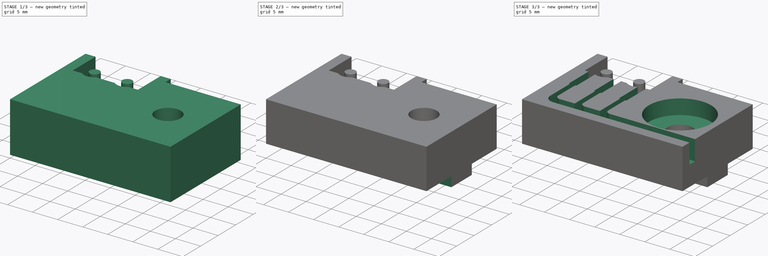
[diagram: build sequence overview — one tinted view per stage of 3, left to right]
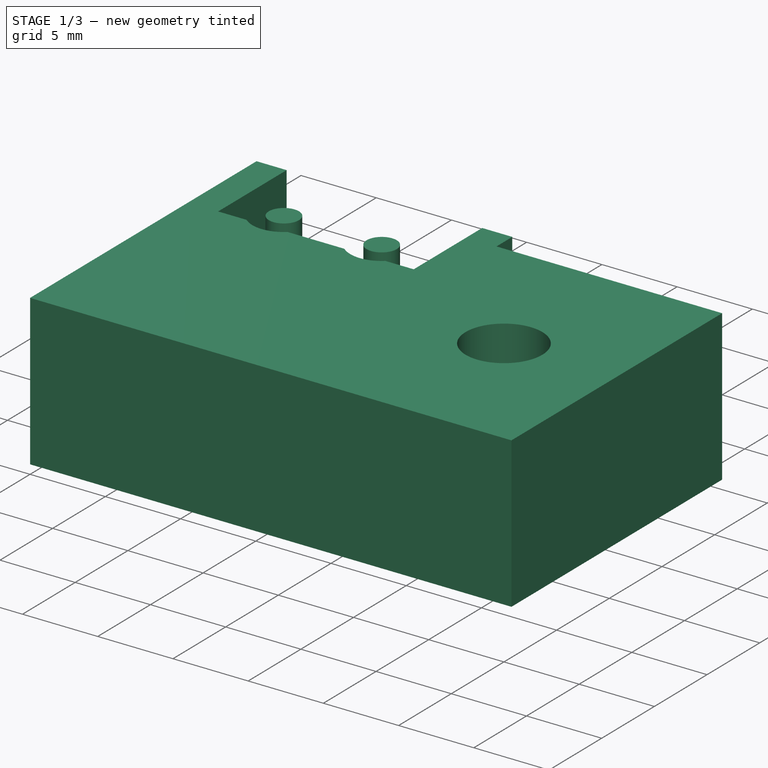
[diagram: stage 1 of 3 — iso view after this stage's code; geometry added in this stage tinted green]
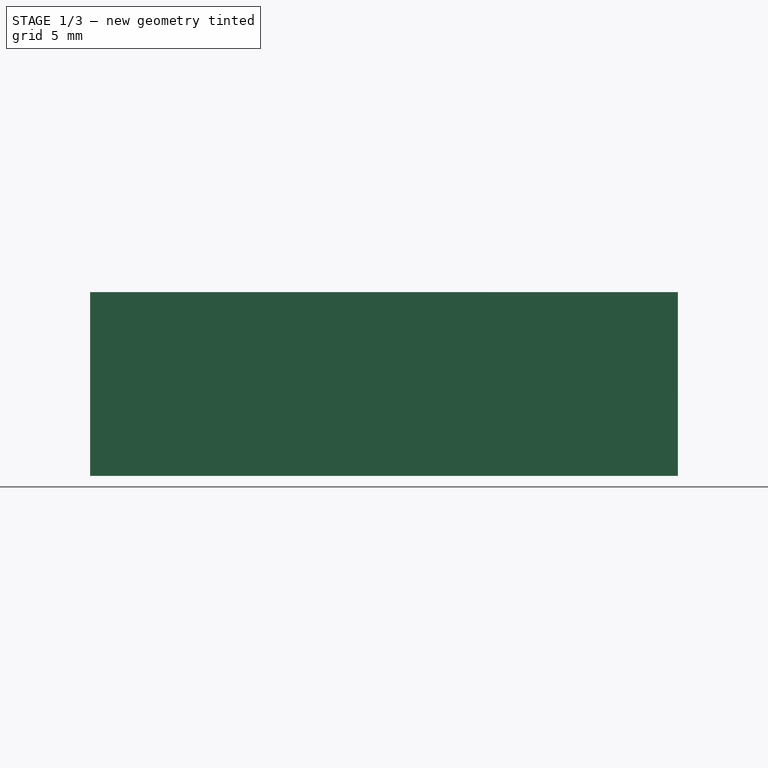
[diagram: stage 1 of 3 — front view after this stage's code; geometry added in this stage tinted green]
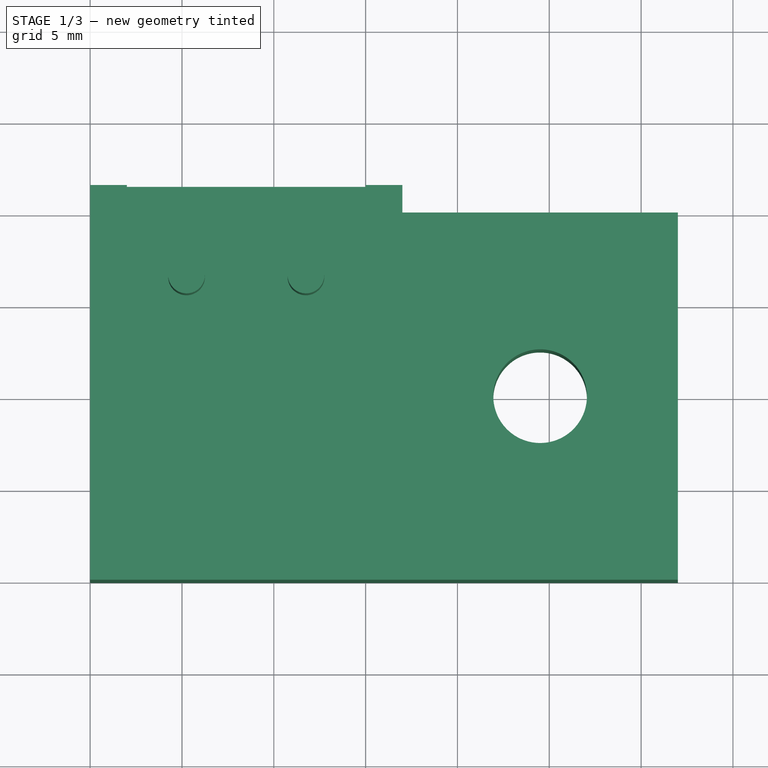
[diagram: stage 1 of 3 — top view after this stage's code; geometry added in this stage tinted green]
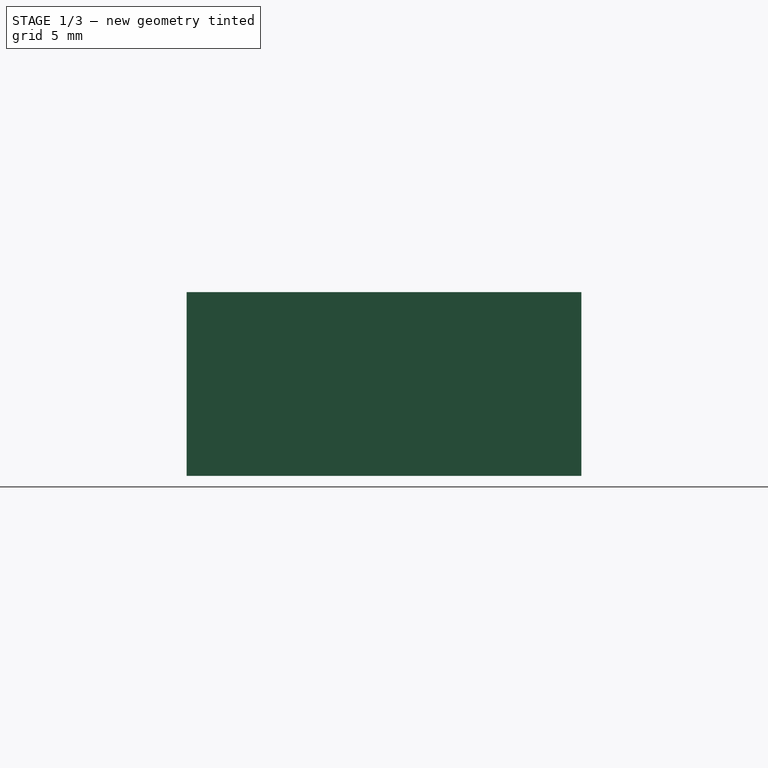
[diagram: stage 1 of 3 — right view after this stage's code; geometry added in this stage tinted green]
FCSTD DOCUMENT  (FreeCAD 0.18R16131 (Git))
Label: Limit Switch Bed
License: All rights reserved
LicenseURL: http://es.wikipedia.org/wiki/Todos_los_derechos_reservados
objects: Sketcher::SketchObject×5, PartDesign::Pocket×4, PartDesign::Pad×1, PartDesign::Body×1
note: 16 computed .brp shape members not serialized (recipe doc carries the construction recipe); baked Part::Feature solids carry a one-line shape summary decoded from their .brp

FEATURE [Sketcher::SketchObject] Sketch  label="main_body"
  MapMode = 5
  expr: Constraints[19] = main_body.Constraints.L2 / 2
  expr: Constraints[18] = main_body.Constraints.H2 / 2
  sketch-geometry (7):
    g0: LineSegment StartX=0 StartY=21.5 StartZ=0 EndX=0 EndY=0 EndZ=0
    g1: LineSegment StartX=0 StartY=0 StartZ=0 EndX=32 EndY=0 EndZ=0
    g2: LineSegment StartX=32 StartY=0 StartZ=0 EndX=32 EndY=20 EndZ=0
    g3: LineSegment StartX=32 StartY=20 StartZ=0 EndX=17 EndY=20 EndZ=0
    g4: LineSegment StartX=17 StartY=20 StartZ=0 EndX=17 EndY=21.5 EndZ=0
    g5: LineSegment StartX=17 StartY=21.5 StartZ=0 EndX=0 EndY=21.5 EndZ=0
    g6: Circle CenterX=24.5 CenterY=10 CenterZ=0 NormalX=0 NormalY=0 NormalZ=1 AngleXU=0 Radius=2.55
  constraints (20):
    c: Vertical(g0)
    c: Coincident(g0,g1)
    c: Horizontal(g1)
    c: Coincident(g1,g2)
    c: Vertical(g2)
    c: Coincident(g2,g3)
    c: Horizontal(g3)
    c: Coincident(g3,g4)
    c: Vertical(g4)
    c: Coincident(g4,g5)
    c: Coincident(g5,g0)
    c: Horizontal(g5)
    c: Coincident(g0,g-1)
    c: DistanceX(g5,g5) = 17  'L1'
    c: DistanceY(g2,g2) = 20  'H2'
    c: Radius(g6) = 2.55
    c: DistanceY(g0,g0) = 21.5  'H1'
    c: DistanceX(g4,g2) = 15  'L2'
    c: DistanceY(g6,g2) = 10
    c: DistanceX(g6,g2) = 7.5
FEATURE [PartDesign::Pad] Pad  label="Main Body"
  Length = 10
  Length2 = 100
  Profile = -> Sketch
  Refine = true
  Type = 0
FEATURE [Sketcher::SketchObject] Sketch001  label="switch bed"
  ExternalGeometry = -> [Pad]
  MapMode = 5
  Placement = pos=(0,0,10) rot=(0,0,1;0rad)
  Support = -> [Pad]
  sketch-geometry (14):
    g0: LineSegment StartX=2 StartY=21.5 StartZ=0 EndX=15 EndY=21.5 EndZ=0
    g1: LineSegment StartX=8.5 StartY=15 StartZ=0 EndX=6.61015 EndY=15 EndZ=0
    g2: LineSegment StartX=2 StartY=15 StartZ=0 EndX=2 EndY=21.5 EndZ=0
    g3: Circle CenterX=5.25 CenterY=16.6 CenterZ=0 NormalX=0 NormalY=0 NormalZ=1 AngleXU=0 Radius=1
    g4: Circle CenterX=11.75 CenterY=16.6 CenterZ=0 NormalX=0 NormalY=0 NormalZ=1 AngleXU=0 Radius=1
    g5: LineSegment [constr] StartX=5.25 StartY=16.6 StartZ=0 EndX=11.75 EndY=16.6 EndZ=0
    g6: LineSegment [constr] StartX=8.5 StartY=16.6 StartZ=0 EndX=8.5 EndY=15 EndZ=0
    g7: LineSegment StartX=15 StartY=21.5 StartZ=0 EndX=15 EndY=15 EndZ=0
    g8: LineSegment StartX=8.5 StartY=15 StartZ=0 EndX=10.3899 EndY=15 EndZ=0
    g9: ArcOfCircle CenterX=5.25 CenterY=16.6 CenterZ=0 NormalX=0 NormalY=0 NormalZ=1 AngleXU=0 Radius=2.1 StartAngle=4.00784 EndAngle=5.41694
    g10: ArcOfCircle CenterX=11.75 CenterY=16.6 CenterZ=0 NormalX=0 NormalY=0 NormalZ=1 AngleXU=0 Radius=2.1 StartAngle=4.00784 EndAngle=5.41694
    g11: LineSegment StartX=2 StartY=15 StartZ=0 EndX=3.88985 EndY=15 EndZ=0
    g12: LineSegment StartX=13.1101 StartY=15 StartZ=0 EndX=15 EndY=15 EndZ=0
    g13: LineSegment [constr] StartX=3.88985 StartY=15 StartZ=0 EndX=6.61015 EndY=15 EndZ=0
  constraints (37):
    c: Coincident(g2,g0)
    c: Vertical(g2)
    c: Equal(g3,g4)
    c: Coincident(g5,g3)
    c: Coincident(g5,g4)
    c: PointOnObject(g6,g5)
    c: Symmetric(g3,g4,g6)
    c: Symmetric(g-3,g-4,g6)
    c: PointOnObject(g0,g-5)
    c: DistanceX(g5,g5) = 6.5  'd_holes'
    c: DistanceY(g2,g2) = 6.5  'H'
    c: Coincident(g7,g0)
    c: Vertical(g7)
    c: Coincident(g1,g6)
    c: Coincident(g8,g1)
    c: Horizontal(g8)
    c: Horizontal(g1)
    c: Equal(g1,g8)
    c: Equal(g7,g2)
    c: Coincident(g9,g1)
    c: Coincident(g10,g8)
    c: DistanceX(g0,g0) = 13
    c: Coincident(g11,g2)
    c: Coincident(g11,g9)
    c: Horizontal(g11)
    c: Coincident(g12,g10)
    c: Coincident(g12,g7)
    c: Horizontal(g12)
    c: Coincident(g9,g3)
    c: Coincident(g10,g4)
    c: Symmetric(g0,g0,g6)
    c: Radius(g3) = 1  'R-COL'
    c: Radius(g9) = 2.1
    c: Coincident(g13,g9)
    c: Coincident(g13,g1)
    c: Horizontal(g13)
    c: DistanceY(g6,g6) = 1.6
FEATURE [PartDesign::Pocket] Pocket  label="Switch Bed"
  BaseFeature = -> Pad
  Length = 6
  Length2 = 100
  Profile = -> Sketch001
  Refine = true
  Type = 0
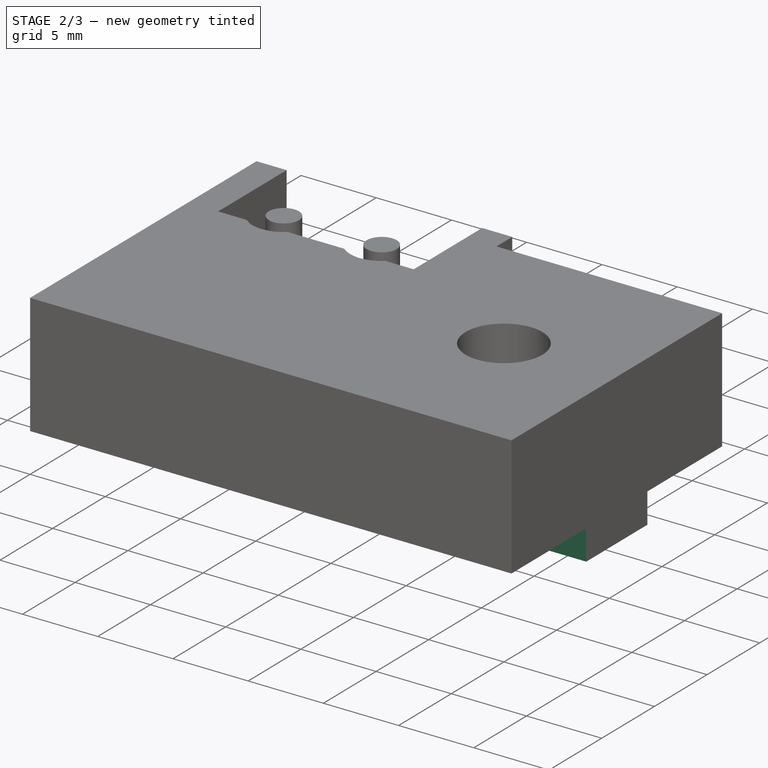
[diagram: stage 2 of 3 — iso view after this stage's code; geometry added in this stage tinted green]
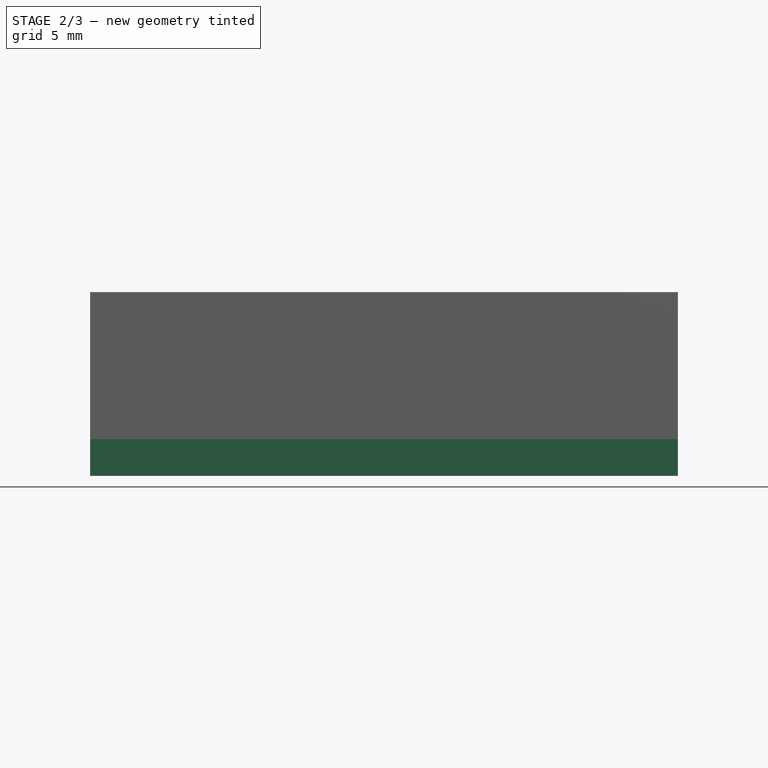
[diagram: stage 2 of 3 — front view after this stage's code; geometry added in this stage tinted green]
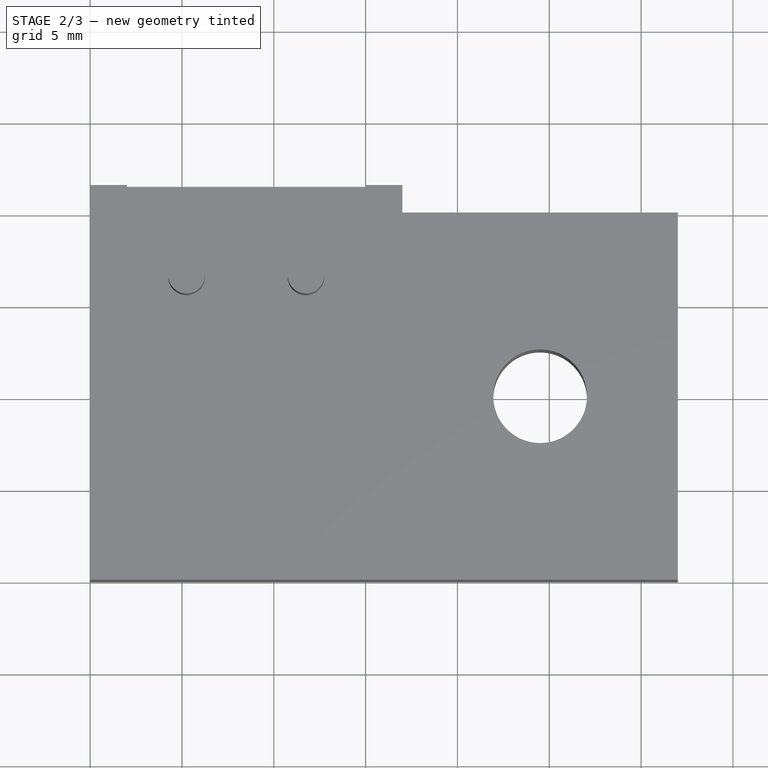
[diagram: stage 2 of 3 — top view after this stage's code; geometry added in this stage tinted green]
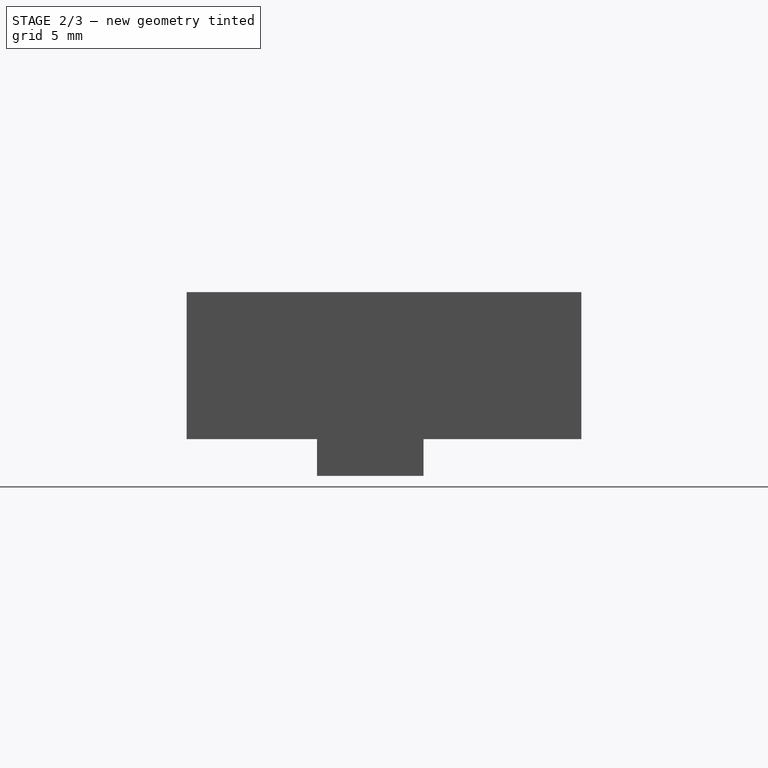
[diagram: stage 2 of 3 — right view after this stage's code; geometry added in this stage tinted green]
FEATURE [Sketcher::SketchObject] Sketch002  label="rail_guide"
  ExternalGeometry = -> [Pocket]
  MapMode = 5
  Placement = pos=(0,0,0) rot=(0.57735,-0.57735,-0.57735;2.0944rad)
  Support = -> [Pocket]
  expr: Constraints[22] = main_body.Constraints.H2 / 2
  sketch-geometry (10):
    g0: LineSegment StartX=-21.5 StartY=0 StartZ=0 EndX=-12.9 EndY=0 EndZ=0
    g1: LineSegment StartX=-12.9 StartY=0 StartZ=0 EndX=-12.9 EndY=2 EndZ=0
    g2: LineSegment StartX=-12.9 StartY=2 StartZ=0 EndX=-21.5 EndY=2 EndZ=0
    g3: LineSegment StartX=-21.5 StartY=2 StartZ=0 EndX=-21.5 EndY=0 EndZ=0
    g4: LineSegment StartX=-7.1 StartY=0 StartZ=0 EndX=0 EndY=0 EndZ=0
    g5: LineSegment StartX=0 StartY=0 StartZ=0 EndX=0 EndY=2 EndZ=0
    g6: LineSegment StartX=0 StartY=2 StartZ=0 EndX=-7.1 EndY=2 EndZ=0
    g7: LineSegment StartX=-7.1 StartY=2 StartZ=0 EndX=-7.1 EndY=0 EndZ=0
    g8: LineSegment [constr] StartX=-12.9 StartY=0 StartZ=0 EndX=-10 EndY=0 EndZ=0
    g9: LineSegment [constr] StartX=-10 StartY=0 StartZ=0 EndX=-7.1 EndY=0 EndZ=0
  constraints (27):
    c: Coincident(g0,g1)
    c: Coincident(g1,g2)
    c: Coincident(g2,g3)
    c: Coincident(g3,g0)
    c: Horizontal(g0)
    c: Horizontal(g2)
    c: Vertical(g1)
    c: Vertical(g3)
    c: Coincident(g4,g5)
    c: Coincident(g5,g6)
    c: Coincident(g6,g7)
    c: Coincident(g7,g4)
    c: Horizontal(g4)
    c: Horizontal(g6)
    c: Vertical(g5)
    c: Vertical(g7)
    c: DistanceX(g0,g4) = 5.8  'W'
    c: Coincident(g0,g8)
    c: Horizontal(g8)
    c: Coincident(g8,g9)
    c: Coincident(g9,g4)
    c: Equal(g8,g9)
    c: DistanceX(g8,g-3) = 10
    c: Equal(g1,g7)
    c: Coincident(g0,g-4)
    c: Coincident(g4,g-1)
    c: DistanceY(g7,g7) = 2
FEATURE [PartDesign::Pocket] Pocket001  label="Rail Guide"
  BaseFeature = -> Pocket
  Length = 5
  Length2 = 100
  Profile = -> Sketch002
  Refine = true
  Type = 1
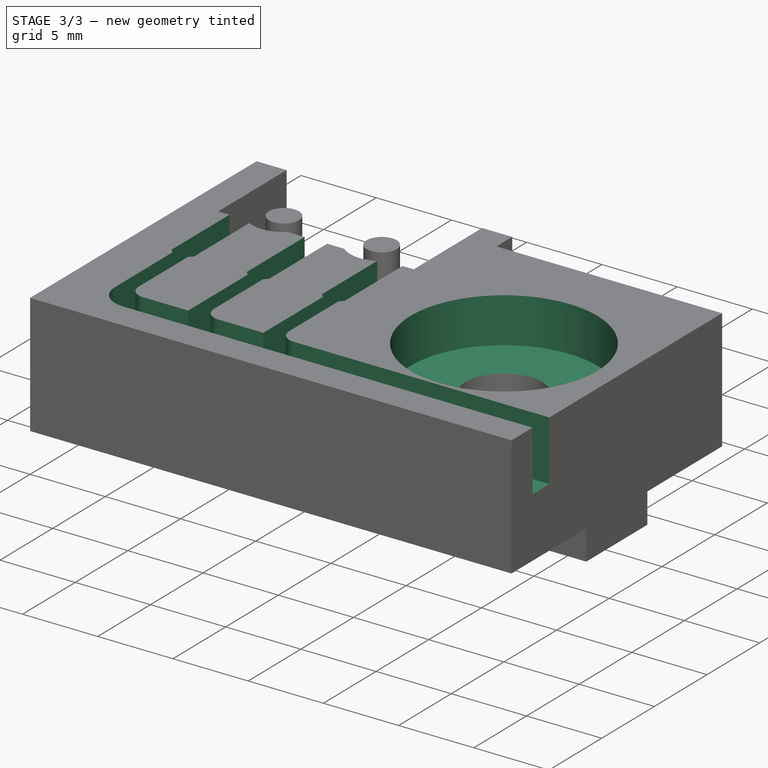
[diagram: stage 3 of 3 — iso view after this stage's code; geometry added in this stage tinted green]
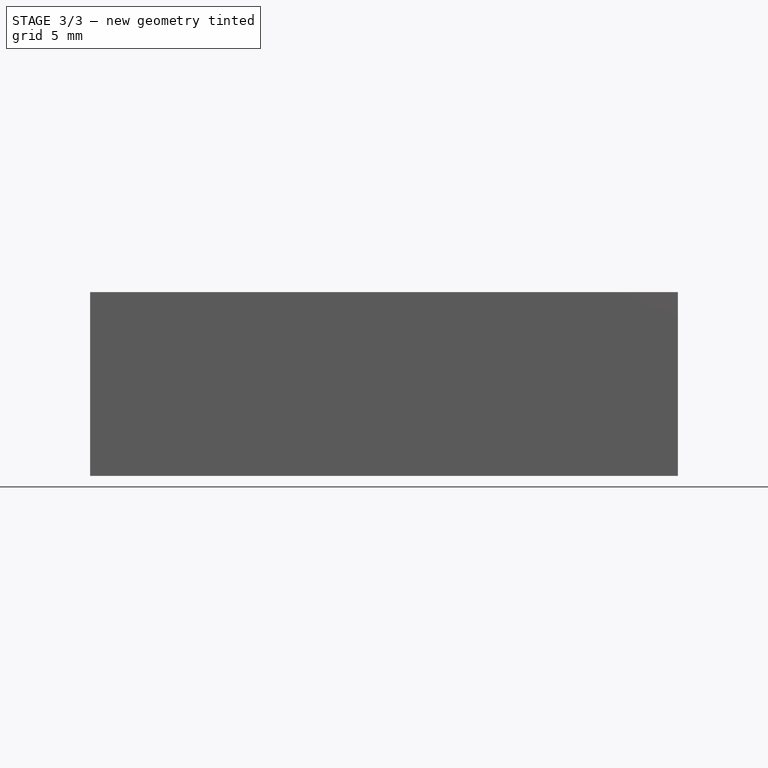
[diagram: stage 3 of 3 — front view after this stage's code; geometry added in this stage tinted green]
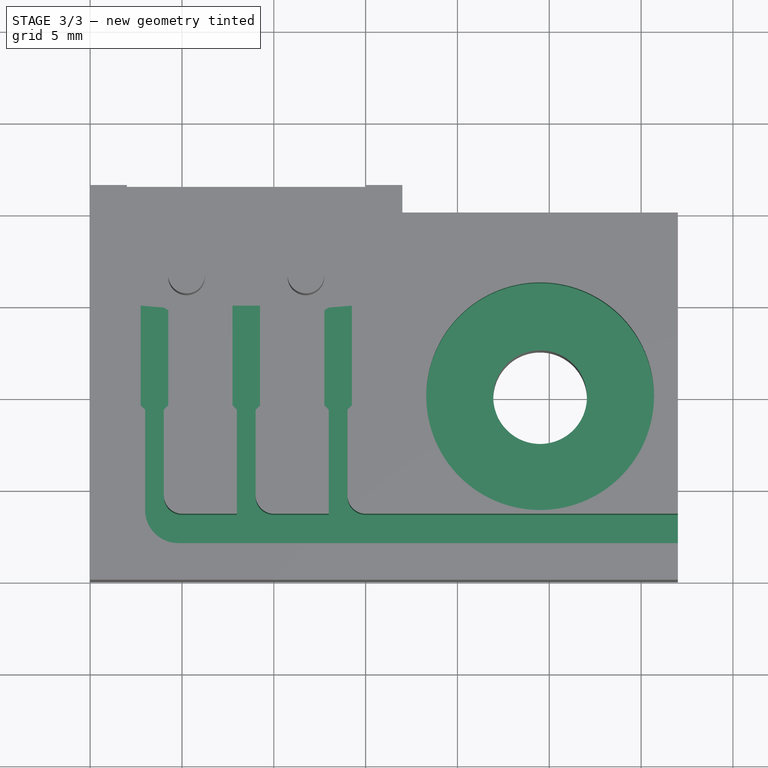
[diagram: stage 3 of 3 — top view after this stage's code; geometry added in this stage tinted green]
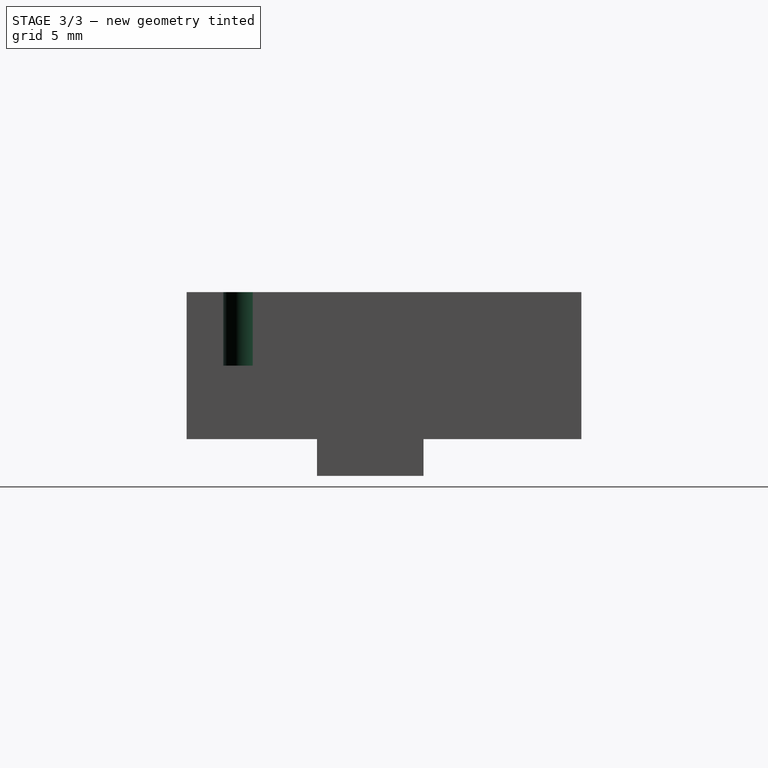
[diagram: stage 3 of 3 — right view after this stage's code; geometry added in this stage tinted green]
FEATURE [Sketcher::SketchObject] Sketch003
  ExternalGeometry = -> [Pocket001,Sketch001]
  MapMode = 5
  Placement = pos=(0,0,10) rot=(0,0,1;0rad)
  Support = -> [Pocket001]
  sketch-geometry (42):
    g0: LineSegment StartX=7.75 StartY=15 StartZ=0 EndX=7.75 EndY=9.5 EndZ=0
    g1: LineSegment StartX=7.75 StartY=9.5 StartZ=0 EndX=7.99 EndY=9.26 EndZ=0
    g2: LineSegment StartX=4.79 StartY=2 StartZ=0 EndX=32 EndY=2 EndZ=0
    g3: LineSegment StartX=32 StartY=2 StartZ=0 EndX=32 EndY=3.6 EndZ=0
    g4: LineSegment StartX=32 StartY=3.6 StartZ=0 EndX=15.01 EndY=3.6 EndZ=0
    g5: LineSegment StartX=14.01 StartY=4.6 StartZ=0 EndX=14.01 EndY=9.26 EndZ=0
    g6: LineSegment StartX=14.01 StartY=9.26 StartZ=0 EndX=14.25 EndY=9.5 EndZ=0
    g7: LineSegment StartX=14.25 StartY=9.5 StartZ=0 EndX=14.25 EndY=15 EndZ=0
    g8: LineSegment StartX=14.25 StartY=15 StartZ=0 EndX=12.75 EndY=15 EndZ=0
    g9: LineSegment StartX=12.75 StartY=15 StartZ=0 EndX=12.75 EndY=9.5 EndZ=0
    g10: LineSegment StartX=12.75 StartY=9.5 StartZ=0 EndX=12.99 EndY=9.26 EndZ=0
    g11: LineSegment StartX=12.99 StartY=9.26 StartZ=0 EndX=12.99 EndY=3.6 EndZ=0
    g12: LineSegment StartX=12.99 StartY=3.6 StartZ=0 EndX=10.01 EndY=3.6 EndZ=0
    g13: LineSegment StartX=9.01 StartY=4.6 StartZ=0 EndX=9.01 EndY=9.26 EndZ=0
    g14: LineSegment StartX=9.01 StartY=9.26 StartZ=0 EndX=9.25 EndY=9.5 EndZ=0
    g15: LineSegment StartX=9.25 StartY=9.5 StartZ=0 EndX=9.25 EndY=15 EndZ=0
    g16: LineSegment StartX=9.25 StartY=15 StartZ=0 EndX=7.75 EndY=15 EndZ=0
    g17: LineSegment StartX=2.75 StartY=15 StartZ=0 EndX=4.25 EndY=15 EndZ=0
    g18: LineSegment StartX=4.25 StartY=15 StartZ=0 EndX=4.25 EndY=9.5 EndZ=0
    g19: LineSegment StartX=4.25 StartY=9.5 StartZ=0 EndX=4.01 EndY=9.26 EndZ=0
    g20: LineSegment StartX=4.01 StartY=9.26 StartZ=0 EndX=4.01 EndY=4.6 EndZ=0
    g21: LineSegment StartX=5.01 StartY=3.6 StartZ=0 EndX=7.99 EndY=3.6 EndZ=0
    g22: LineSegment StartX=7.99 StartY=3.6 StartZ=0 EndX=7.99 EndY=9.26 EndZ=0
    g23: ArcOfCircle CenterX=15.01 CenterY=4.6 CenterZ=0 NormalX=0 NormalY=0 NormalZ=1 AngleXU=0 Radius=1 StartAngle=3.14159 EndAngle=4.71239
    g24: ArcOfCircle CenterX=10.01 CenterY=4.6 CenterZ=0 NormalX=0 NormalY=0 NormalZ=1 AngleXU=0 Radius=1 StartAngle=3.14159 EndAngle=4.71239
    g25: ArcOfCircle CenterX=4.79 CenterY=3.8 CenterZ=0 NormalX=0 NormalY=0 NormalZ=1 AngleXU=0 Radius=1.8 StartAngle=3.14159 EndAngle=4.71239
    g26: ArcOfCircle CenterX=5.01 CenterY=4.6 CenterZ=0 NormalX=0 NormalY=0 NormalZ=1 AngleXU=0 Radius=1 StartAngle=3.14159 EndAngle=4.71239
    g27: LineSegment StartX=2.75 StartY=15 StartZ=0 EndX=2.75 EndY=9.5 EndZ=0
    g28: LineSegment StartX=2.75 StartY=9.5 StartZ=0 EndX=2.99 EndY=9.26 EndZ=0
    g29: LineSegment StartX=2.99 StartY=9.26 StartZ=0 EndX=2.99 EndY=3.8 EndZ=0
    g30: LineSegment [constr] StartX=7.99 StartY=3.6 StartZ=0 EndX=10.01 EndY=3.6 EndZ=0
    g31: LineSegment [constr] StartX=12.99 StartY=3.6 StartZ=0 EndX=15.01 EndY=3.6 EndZ=0
    g32: LineSegment [constr] StartX=2.75 StartY=9.5 StartZ=0 EndX=4.25 EndY=9.5 EndZ=0
    g33: LineSegment [constr] StartX=7.75 StartY=9.5 StartZ=0 EndX=9.25 EndY=9.5 EndZ=0
    g34: LineSegment [constr] StartX=12.75 StartY=9.5 StartZ=0 EndX=14.25 EndY=9.5 EndZ=0
    g35: LineSegment [constr] StartX=4.25 StartY=9.5 StartZ=0 EndX=7.75 EndY=9.5 EndZ=0
    g36: LineSegment [constr] StartX=9.25 StartY=9.5 StartZ=0 EndX=12.75 EndY=9.5 EndZ=0
    g37: LineSegment [constr] StartX=2.99 StartY=9.26 StartZ=0 EndX=4.01 EndY=9.26 EndZ=0
    g38: LineSegment [constr] StartX=7.99 StartY=9.26 StartZ=0 EndX=9.01 EndY=9.26 EndZ=0
    g39: LineSegment [constr] StartX=12.99 StartY=9.26 StartZ=0 EndX=14.01 EndY=9.26 EndZ=0
    g40: LineSegment [constr] StartX=2.99 StartY=3.8 StartZ=0 EndX=4.79 EndY=3.8 EndZ=0
    g41: LineSegment [constr] StartX=8.5 StartY=15 StartZ=0 EndX=8.5 EndY=0 EndZ=0
  constraints (111):
    c: Vertical(g0)
    c: Coincident(g0,g1)
    c: Horizontal(g2)
    c: Coincident(g2,g3)
    c: Coincident(g3,g4)
    c: Horizontal(g4)
    c: Vertical(g5)
    c: Coincident(g5,g6)
    c: Coincident(g6,g7)
    c: Vertical(g7)
    c: Coincident(g7,g8)
    c: Horizontal(g8)
    c: Coincident(g8,g9)
    c: Vertical(g9)
    c: Coincident(g9,g10)
    c: Coincident(g10,g11)
    c: Vertical(g11)
    c: Coincident(g11,g12)
    c: Vertical(g13)
    c: Coincident(g13,g14)
    c: Coincident(g14,g15)
    c: Coincident(g15,g16)
    c: Coincident(g16,g0)
    c: Horizontal(g12)
    c: Vertical(g15)
    c: Horizontal(g17)
    c: Coincident(g17,g18)
    c: Vertical(g18)
    c: Coincident(g18,g19)
    c: Coincident(g19,g20)
    c: Vertical(g20)
    c: Horizontal(g21)
    c: Coincident(g21,g22)
    c: Coincident(g22,g1)
    c: Vertical(g22)
    c: DistanceY(g3,g3) = 1.6
    c: Tangent(g4,g23) = 1.5708
    c: Tangent(g5,g23) = 1.5708
    c: Tangent(g12,g24) = 1.5708
    c: Tangent(g13,g24) = 1.5708
    c: Tangent(g2,g25) = -1.5708
    c: Tangent(g21,g26) = -1.5708
    c: Tangent(g20,g26) = -1.5708
    c: Coincident(g17,g27)
    c: Vertical(g27)
    c: Coincident(g27,g28)
    c: Coincident(g28,g29)
    c: Coincident(g29,g25)
    c: Vertical(g29)
    c: Coincident(g30,g21)
    c: Coincident(g30,g12)
    c: Coincident(g31,g11)
    c: Coincident(g31,g4)
    c: Tangent(g31,g23)
    c: Horizontal(g30)
    c: Equal(g17,g16)
    c: Equal(g16,g8)
    c: DistanceX(g17,g17) = 1.5
    c: Coincident(g32,g27)
    c: Coincident(g32,g18)
    c: Horizontal(g32)
    c: Coincident(g33,g0)
    c: Coincident(g33,g14)
    c: Coincident(g34,g9)
    c: Coincident(g34,g6)
    c: Horizontal(g34)
    c: Horizontal(g33)
    c: Equal(g27,g0)
    c: Equal(g0,g9)
    c: Coincident(g35,g18)
    c: Coincident(g35,g0)
    c: Coincident(g36,g14)
    c: Coincident(g36,g9)
    c: Horizontal(g36)
    c: Horizontal(g35)
    c: Angle(g19,g35) = 2.35619
    c: Parallel(g19,g14)
    c: Parallel(g14,g6)
    c: Coincident(g37,g28)
    c: Coincident(g37,g19)
    c: Horizontal(g37)
    c: DistanceX(g37,g37) = 1.02
    c: Coincident(g38,g1)
    c: Coincident(g38,g13)
    c: Coincident(g39,g10)
    c: Coincident(g39,g5)
    c: Horizontal(g39)
    c: Horizontal(g38)
    c: Equal(g37,g38)
    c: Equal(g38,g39)
    c: Equal(g14,g19)
    c: Equal(g19,g6)
    c: Angle(g28,g32) = 0.785398
    c: DistanceY(g27,g27) = 5.5
    c: Equal(g26,g24)
    c: Equal(g24,g23)
    c: Radius(g23) = 1
    c: Radius(g25) = 1.8
    c: Coincident(g40,g25)
    c: Coincident(g40,g25)
    c: Horizontal(g40)
    c: Equal(g35,g36)
    c: DistanceX(g36,g36) = 3.5
    c: PointOnObject(g41,g16)
    c: Symmetric(g15,g0,g41)
    c: Vertical(g3)
    c: Coincident(g41,g-6)
    c: PointOnObject(g3,g-7)
    c: DistanceY(g-7,g2) = 2
    c: Vertical(g41)
    c: PointOnObject(g41,g-4)
FEATURE [PartDesign::Pocket] Pocket002  label="Cable Guides"
  BaseFeature = -> Pocket001
  Length = 4
  Length2 = 100
  Profile = -> Sketch003
  Refine = true
  Type = 0
FEATURE [Sketcher::SketchObject] Sketch004
  ExternalGeometry = -> [Pocket002]
  MapMode = 5
  Placement = pos=(0,0,10) rot=(0,0,1;0rad)
  Support = -> [Pocket002]
  sketch-geometry (1):
    g0: Circle CenterX=24.5 CenterY=10 CenterZ=0 NormalX=0 NormalY=0 NormalZ=1 AngleXU=0 Radius=6.2
  constraints (2):
    c: Coincident(g0,g-3)
    c: Radius(g0) = 6.2
FEATURE [PartDesign::Pocket] Pocket003  label="Wash Bed"
  BaseFeature = -> Pocket002
  Length = 3
  Length2 = 100
  Profile = -> Sketch004
  Refine = true
  Type = 0
FEATURE [PartDesign::Body] Body  label="LimitSwitchBed"
  Group = -> [Sketch,Pad,Sketch001,Pocket,Sketch002,Pocket001,Sketch003,Pocket002,Sketch004,Pocket003]
  Tip = -> Pocket003
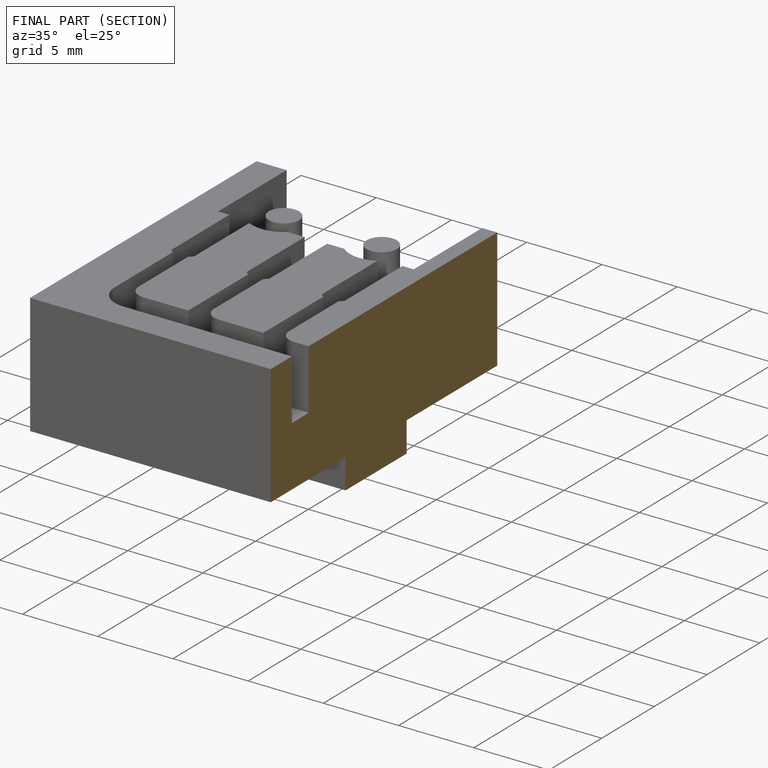
[diagram: finished part — half-section view (interior)]
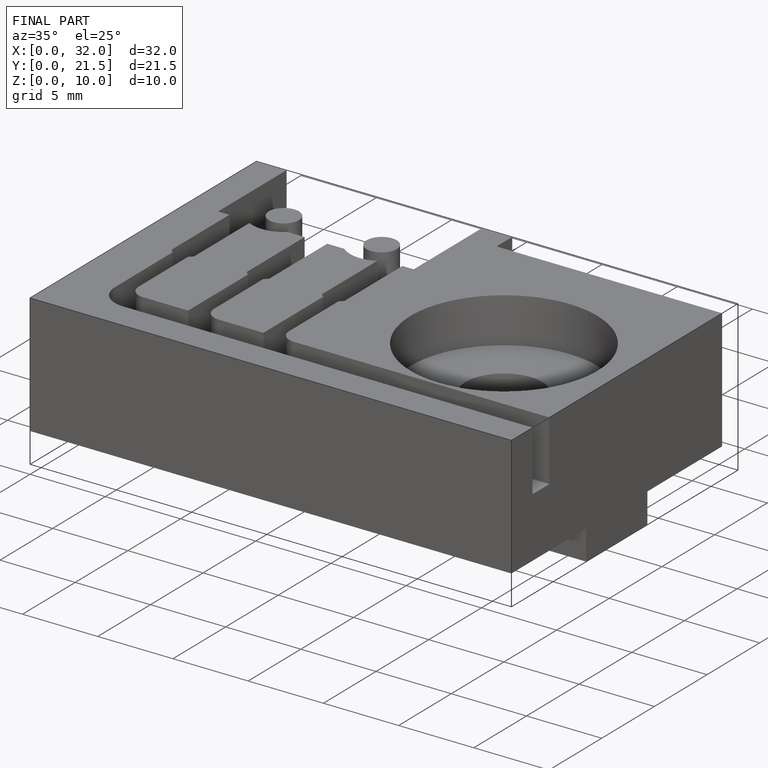
[diagram: finished part — iso view with bounding-box wireframe]
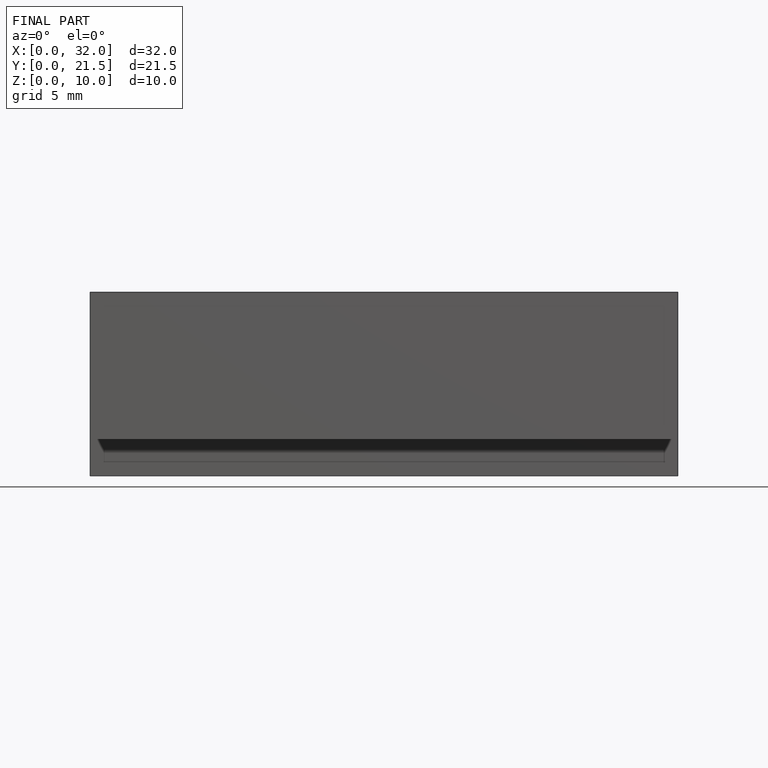
[diagram: finished part — front view with bounding-box wireframe]
